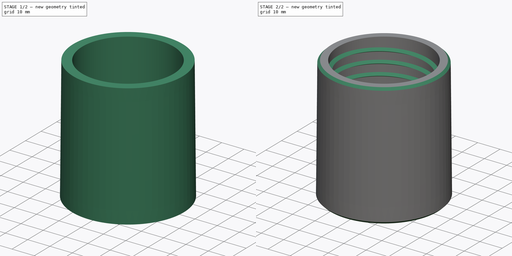
[diagram: build sequence overview — one tinted view per stage of 2, left to right]
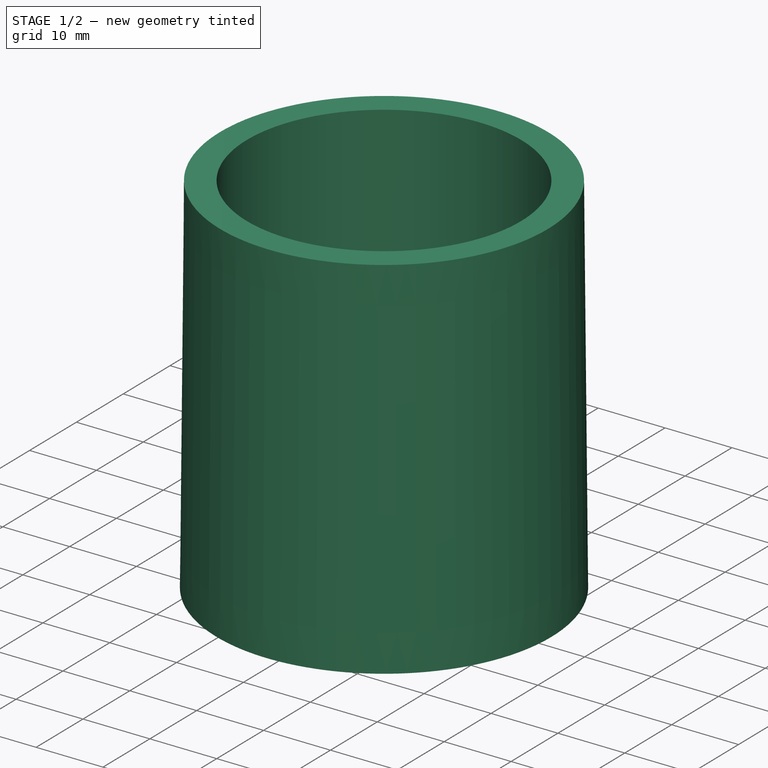
[diagram: stage 1 of 2 — iso view after this stage's code; geometry added in this stage tinted green]
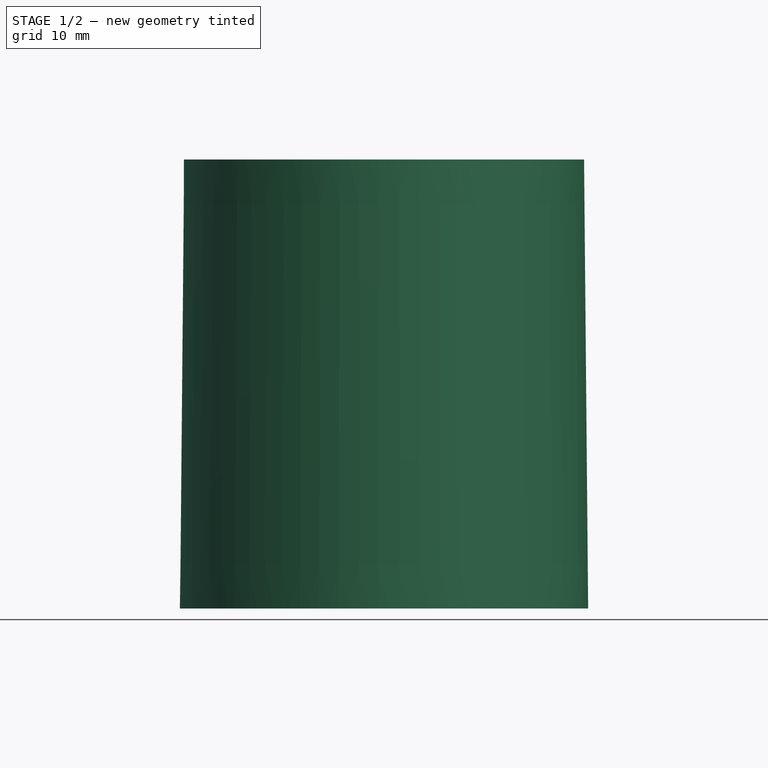
[diagram: stage 1 of 2 — front view after this stage's code; geometry added in this stage tinted green]
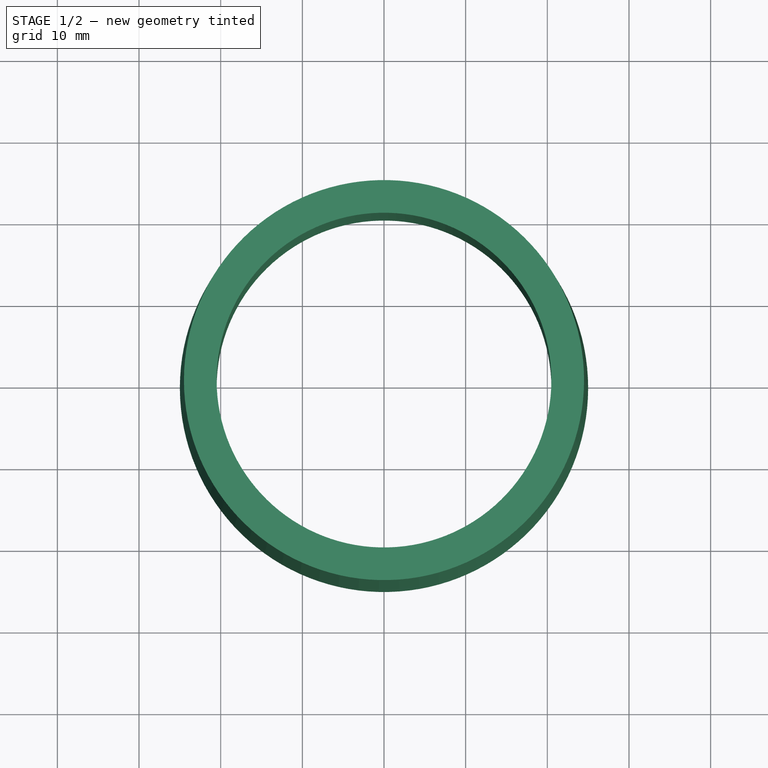
[diagram: stage 1 of 2 — top view after this stage's code; geometry added in this stage tinted green]
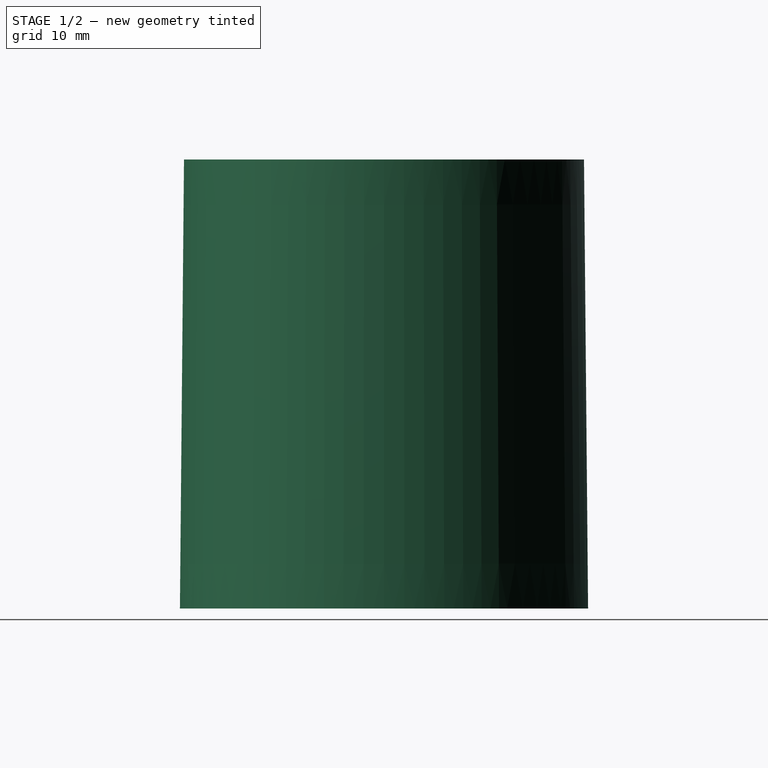
[diagram: stage 1 of 2 — right view after this stage's code; geometry added in this stage tinted green]
FCSTD DOCUMENT  (FreeCAD 0.19R23258 (Git))
Label: DustVac to Cyclone Adaptor
Comment: To make the smaller version, the Sketch is 24mm, Sketch3 is 23.5.  
License: All rights reserved
LicenseURL: http://en.wikipedia.org/wiki/All_rights_reserved
objects: Sketcher::SketchObject×4, Part::Helix×1, PartDesign::AdditiveLoft×1, PartDesign::Pocket×1, PartDesign::ShapeBinder×1, PartDesign::AdditivePipe×1, PartDesign::Chamfer×1, PartDesign::Body×1, Spreadsheet::Sheet×1
note: 15 computed .brp shape members not serialized (recipe doc carries the construction recipe); baked Part::Feature solids carry a one-line shape summary decoded from their .brp

FEATURE [Sketcher::SketchObject] Sketch  label="Bottom"
  MapMode = 5
  Support = -> [XY_Plane]
  expr: Constraints[1] = Spreadsheet.bottom
  sketch-geometry (1):
    g0: Circle CenterX=0 CenterY=0 CenterZ=0 NormalX=0 NormalY=0 NormalZ=1 AngleXU=0 Radius=25
  constraints (2):
    c: Coincident(g0,g-1)
    c: Radius(g0) = 25
FEATURE [Sketcher::SketchObject] Sketch002
  MapMode = 5
  Placement = pos=(0,0,23) rot=(1,0,0;1.5708rad)
  sketch-geometry (3):
    g0: LineSegment StartX=19 StartY=0 StartZ=0 EndX=21.1651 EndY=1.25 EndZ=0
    g1: LineSegment StartX=19 StartY=0 StartZ=0 EndX=21.1651 EndY=-1.25 EndZ=0
    g2: LineSegment StartX=21.1651 StartY=1.25 StartZ=0 EndX=21.1651 EndY=-1.25 EndZ=0
  constraints (9):
    c: PointOnObject(g0,g-1)
    c: Coincident(g1,g0)
    c: Coincident(g2,g0)
    c: Coincident(g2,g1)
    c: Vertical(g2)
    c: DistanceX(g0) = 19
    c: Angle(g1,g0) = 1.0472
    c: DistanceY(g2) = -2.5
    c: Equal(g1,g0)
FEATURE [Part::Helix] Helix
  Angle = 0
  AttacherType = Attacher::AttachEngine3D
  Height = 30
  LocalCoord = 0
  Pitch = 5
  Placement = pos=(0,0,23) rot=(0,0,1;0rad)
  Radius = 20.5
  Style = 1
FEATURE [Sketcher::SketchObject] Sketch003  label="Top"
  AttachmentOffset = pos=(0,0,55) rot=(0,0,1;0rad)
  MapMode = 5
  Placement = pos=(0,0,55) rot=(0,0,1;0rad)
  Support = -> [XY_Plane]
  expr: Constraints[1] = Spreadsheet.top
  sketch-geometry (1):
    g0: Circle CenterX=0 CenterY=0 CenterZ=0 NormalX=0 NormalY=0 NormalZ=1 AngleXU=0 Radius=24.5
  constraints (2):
    c: Coincident(g0,g-1)
    c: Radius(g0) = 24.5
FEATURE [Sketcher::SketchObject] Sketch004
  MapMode = 5
  Support = -> [XY_Plane]
  sketch-geometry (1):
    g0: Circle CenterX=0 CenterY=0 CenterZ=0 NormalX=0 NormalY=0 NormalZ=1 AngleXU=0 Radius=20.5
  constraints (2):
    c: Coincident(g0,g-1)
    c: Radius(g0) = 20.5
FEATURE [PartDesign::AdditiveLoft] AdditiveLoft
  Closed = false
  Profile = -> Sketch003
  Ruled = false
  Sections = -> [Sketch]
FEATURE [PartDesign::Pocket] Pocket
  BaseFeature = -> AdditiveLoft
  Length = 5
  Length2 = 100
  Profile = -> Sketch004
  Reversed = true
  Type = 1
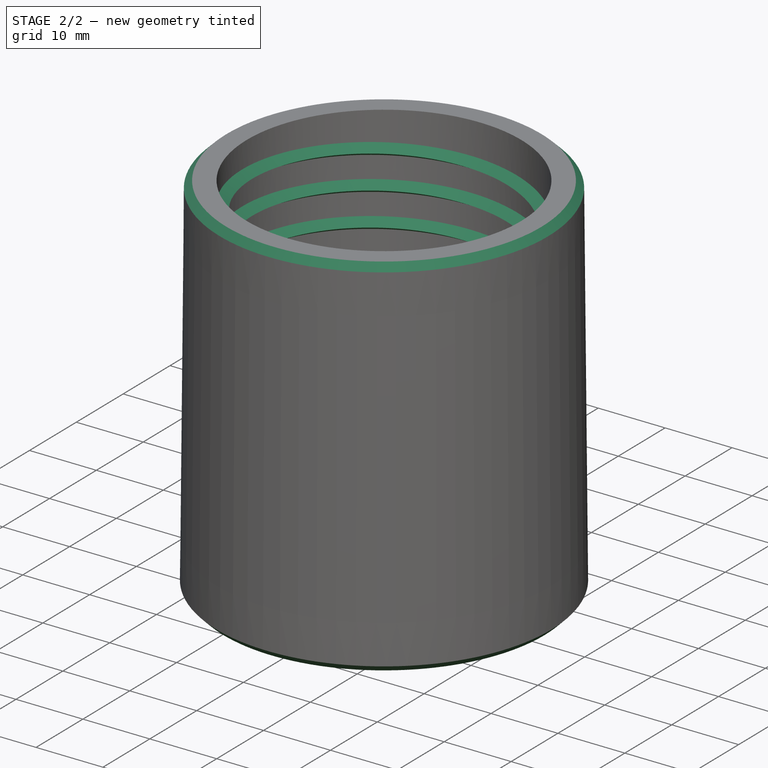
[diagram: stage 2 of 2 — iso view after this stage's code; geometry added in this stage tinted green]
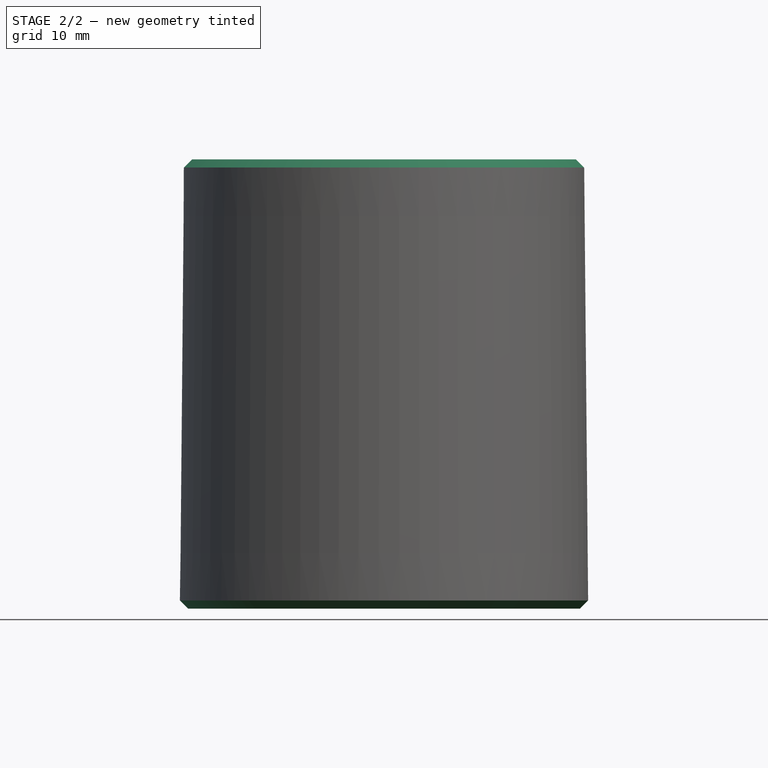
[diagram: stage 2 of 2 — front view after this stage's code; geometry added in this stage tinted green]
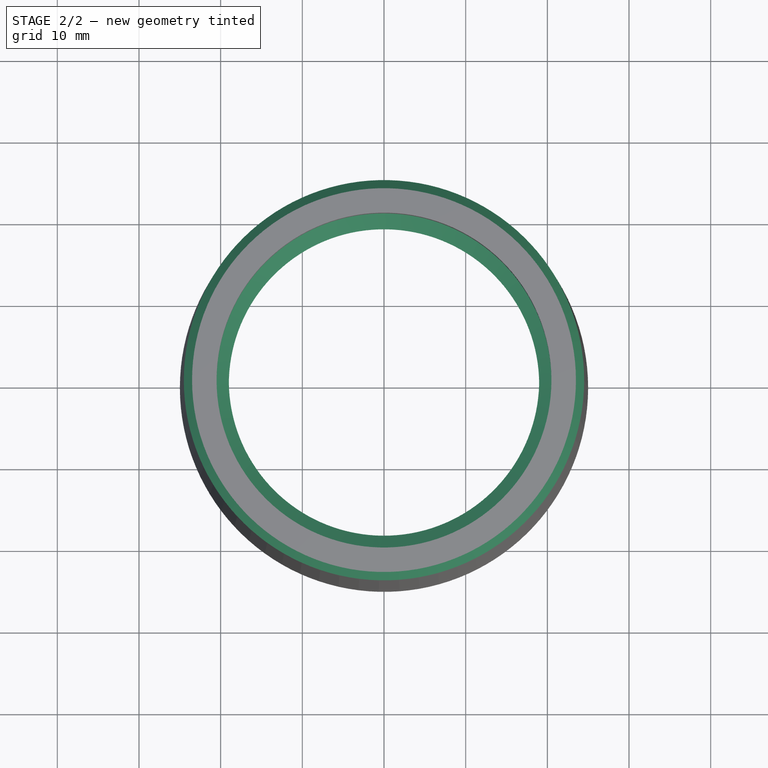
[diagram: stage 2 of 2 — top view after this stage's code; geometry added in this stage tinted green]
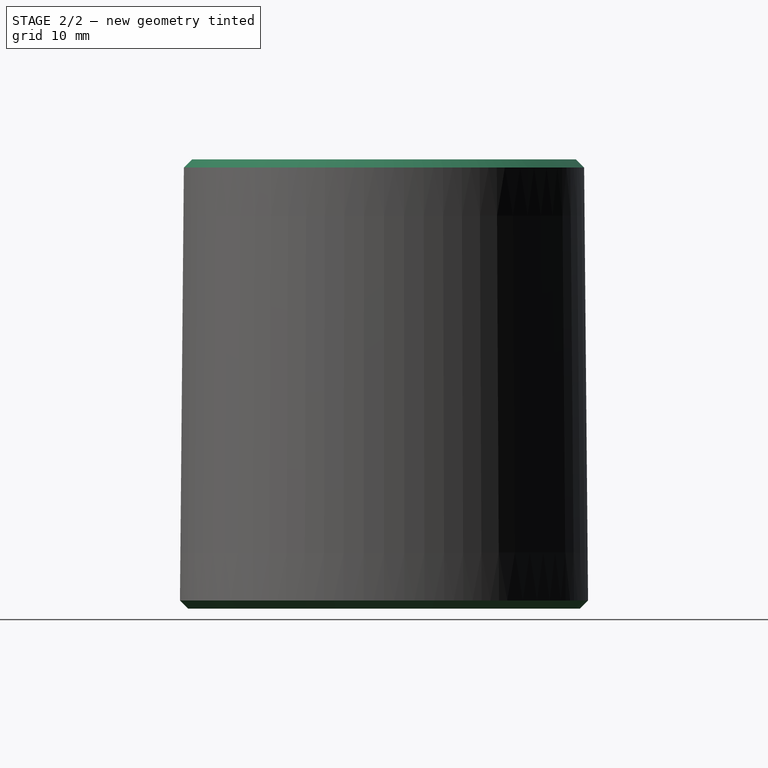
[diagram: stage 2 of 2 — right view after this stage's code; geometry added in this stage tinted green]
FEATURE [PartDesign::ShapeBinder] CopyHelix
  Placement = pos=(0,0,23) rot=(0,0,1;0rad)
  TraceSupport = false
FEATURE [PartDesign::AdditivePipe] AdditivePipe
  AuxilleryCurvelinear = true
  AuxillerySpineTangent = false
  BaseFeature = -> Pocket
  Binormal = (0,0,0)
  Mode = 2
  Profile = -> Sketch002
  Spine = -> CopyHelix
  SpineTangent = false
  Transformation = 0
  Transition = 0
FEATURE [PartDesign::Chamfer] Chamfer
  Angle = 45
  Base = -> AdditivePipe [Edge1,Edge4]
  BaseFeature = -> AdditivePipe
  ChamferType = 0
  FlipDirection = false
  Size = 1
  Size2 = 1
  SupportTransform = false
FEATURE [PartDesign::Body] Body
  Group = -> [Sketch,Sketch003,AdditiveLoft,Sketch004,Pocket,AdditivePipe,CopyHelix,Chamfer]
  Origin = -> Origin
  Tip = -> Chamfer
FEATURE [Spreadsheet::Sheet] Spreadsheet
  cells = A1=Top; B1(top)=24.5; A2=Bottom; B2(bottom)=25; A4=Inlet Top; B4=23.5; A5=Inlet Bottom; B5=24; A6=Outlet Top; B6=24.5; A7=Outlet Bottom; B7=25
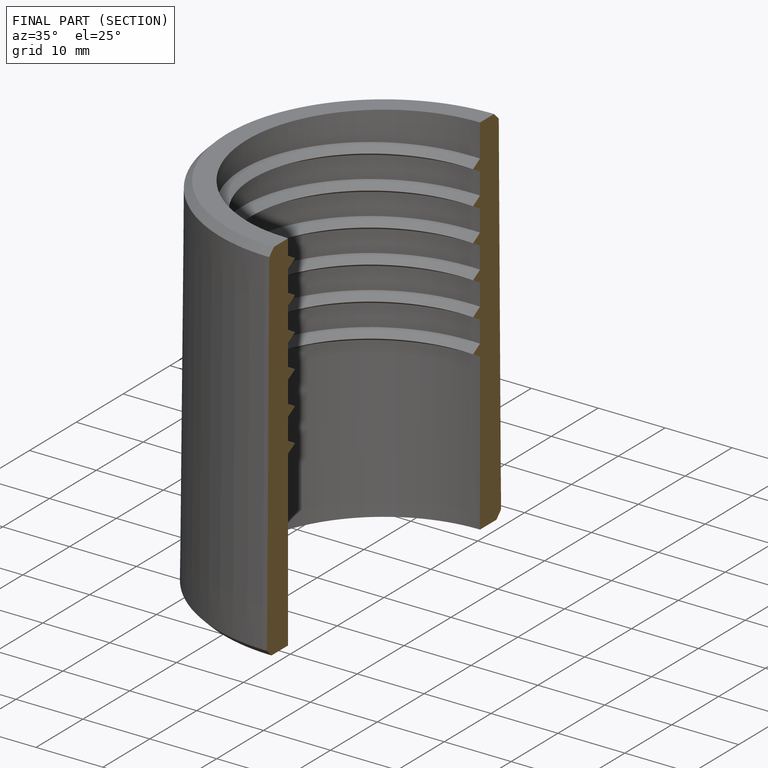
[diagram: finished part — half-section view (interior)]
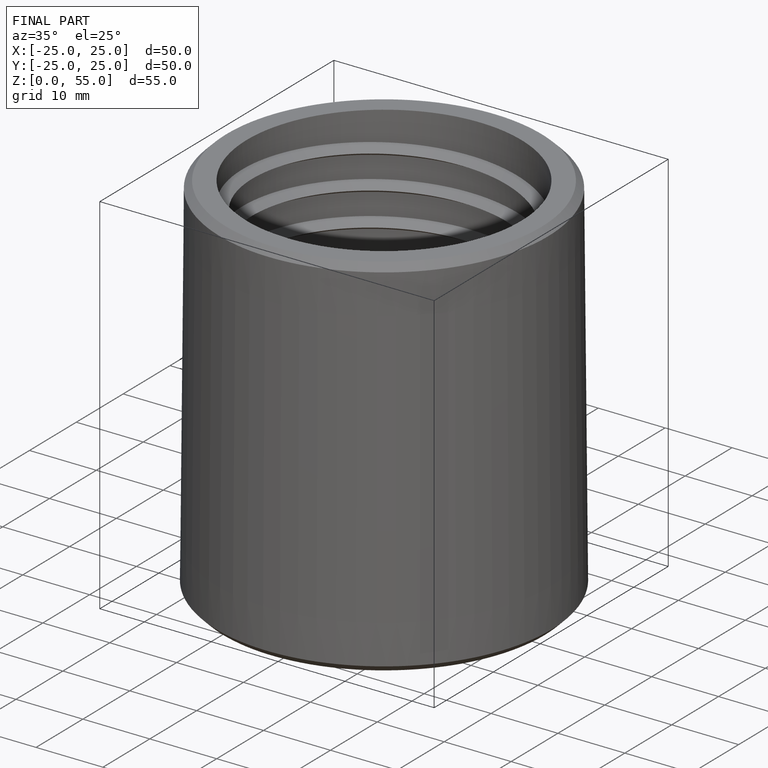
[diagram: finished part — iso view with bounding-box wireframe]
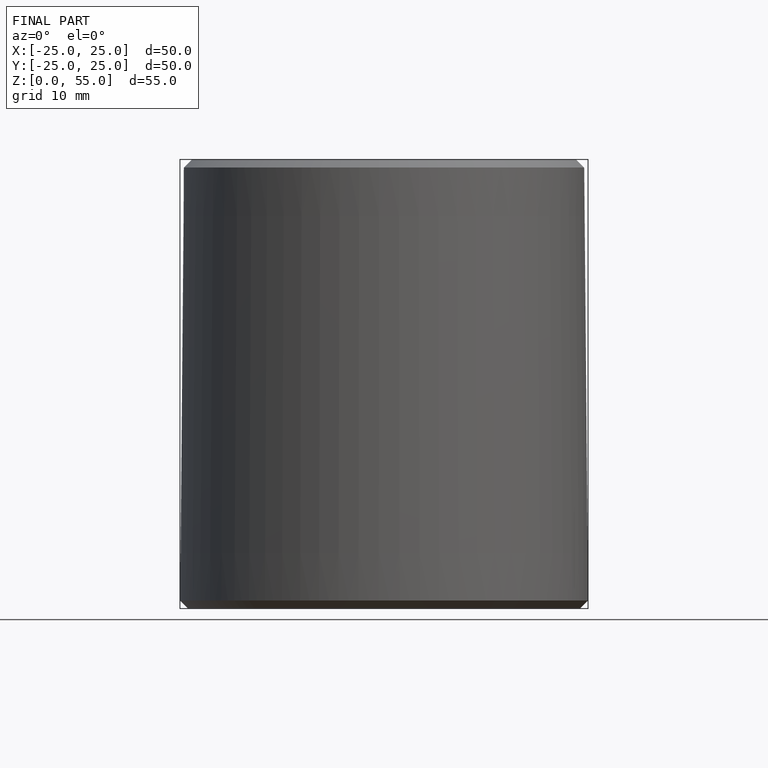
[diagram: finished part — front view with bounding-box wireframe]
